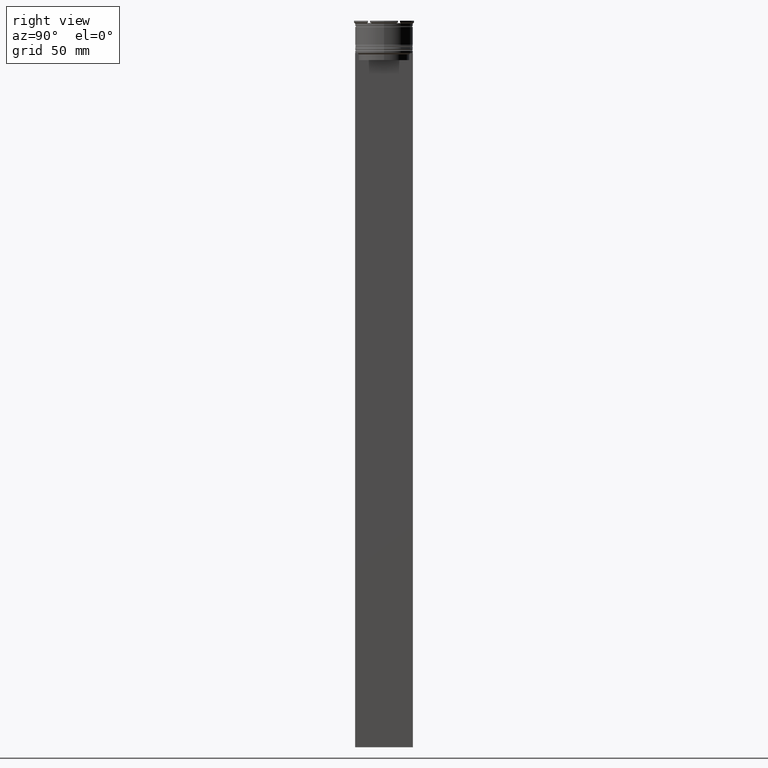
[diagram: clean part render]
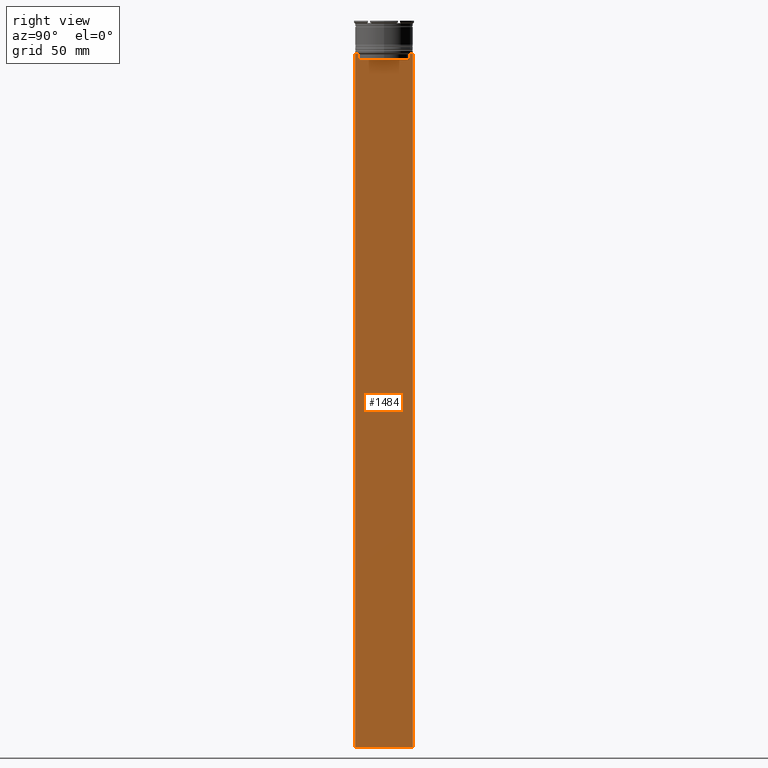
[diagram: same view with one face highlighted and labeled with its STEP entity id]
A machine part, right view. The second image highlights one B-rep face of the part: STEP entity #1484.
In plain terms, the highlighted planar face has unit normal (-1, 0, 0).
Its self-contained STEP definition (entity closure, byte-faithful):
#14 = CARTESIAN_POINT ( 'NONE',  ( 0.5000000000000000000, -12.49999999999999289, -14.00000000000000178 ) ) ;
#28 = VERTEX_POINT ( 'NONE', #39 ) ;
#31 = CARTESIAN_POINT ( 'NONE',  ( 0.5000000000000000000, -12.49999999999999289, -14.00000000000000178 ) ) ;
#34 = EDGE_CURVE ( 'NONE', #1673, #1708, #1573, .T. ) ;
#39 = CARTESIAN_POINT ( 'NONE',  ( 0.5000000000000000000, 11.38902980942626719, -14.00000000000000178 ) ) ;
#114 = DIRECTION ( 'NONE',  ( -1.000000000000000000, 0.000000000000000000, 0.000000000000000000 ) ) ;
#154 = EDGE_CURVE ( 'NONE', #1708, #1888, #2475, .T. ) ;
#165 = DIRECTION ( 'NONE',  ( 0.000000000000000000, -1.000000000000000000, 0.000000000000000000 ) ) ;
#236 = CARTESIAN_POINT ( 'NONE',  ( 0.5000000000000000000, 10.90000000000000213, -17.00000000000000000 ) ) ;
#264 = CARTESIAN_POINT ( 'NONE',  ( 0.5000000000000000000, -10.88852607105296322, -14.50000000000000000 ) ) ;
#267 = CARTESIAN_POINT ( 'NONE',  ( 0.5000000000000000000, -10.88852607105296144, -17.00000000000000000 ) ) ;
#282 = LINE ( 'NONE', #1174, #2625 ) ;
#295 = EDGE_CURVE ( 'NONE', #2275, #1379, #2071, .T. ) ;
#322 = ORIENTED_EDGE ( 'NONE', *, *, #34, .T. ) ;
#351 = ORIENTED_EDGE ( 'NONE', *, *, #295, .T. ) ;
#446 = ORIENTED_EDGE ( 'NONE', *, *, #2088, .T. ) ;
#452 = LINE ( 'NONE', #14, #1881 ) ;
#465 = CARTESIAN_POINT ( 'NONE',  ( 0.5000000000000000000, 12.38991525394746773, -14.00000000000000178 ) ) ;
#491 = ORIENTED_EDGE ( 'NONE', *, *, #1322, .T. ) ;
#494 = CARTESIAN_POINT ( 'NONE',  ( 0.5000000000000000000, 12.50000000000000711, -314.0000000000000000 ) ) ;
#498 = CARTESIAN_POINT ( 'NONE',  ( 0.5000000000000000000, -12.49999999999999289, -314.0000000000000000 ) ) ;
#553 = CARTESIAN_POINT ( 'NONE',  ( 0.5000000000000000000, -12.38991525394746773, -14.00000000000000178 ) ) ;
#602 = CARTESIAN_POINT ( 'NONE',  ( 0.5000000000000000000, 10.88852607105296322, -14.50000000000000000 ) ) ;
#609 = CARTESIAN_POINT ( 'NONE',  ( 0.5000000000000000000, 12.50000000000000711, 11.01999200639360765 ) ) ;
#611 = ORIENTED_EDGE ( 'NONE', *, *, #2370, .T. ) ;
#679 = B_SPLINE_CURVE_WITH_KNOTS ( 'NONE', 3,
 ( #1946, #843, #2083, #602 ),
 .UNSPECIFIED., .F., .F.,
 ( 4, 4 ),
 ( 0.01935560801904634073, 0.02006307108468586772 ),
 .UNSPECIFIED. ) ;
#750 = VERTEX_POINT ( 'NONE', #2837 ) ;
#766 = DIRECTION ( 'NONE',  ( 0.000000000000000000, 0.000000000000000000, -1.000000000000000000 ) ) ;
#843 = CARTESIAN_POINT ( 'NONE',  ( 0.5000000000000000000, 11.22219891375843304, -14.16667035472756808 ) ) ;
#863 = LINE ( 'NONE', #1725, #2388 ) ;
#905 = CARTESIAN_POINT ( 'NONE',  ( 0.5000000000000000000, -11.38902980942626719, -14.00000000000000178 ) ) ;
#915 = VECTOR ( 'NONE', #1783, 1000.000000000000000 ) ;
#973 = ORIENTED_EDGE ( 'NONE', *, *, #154, .T. ) ;
#1027 = VECTOR ( 'NONE', #766, 1000.000000000000000 ) ;
#1053 = ORIENTED_EDGE ( 'NONE', *, *, #2358, .T. ) ;
#1117 = DIRECTION ( 'NONE',  ( 0.000000000000000000, -1.000000000000000000, 0.000000000000000000 ) ) ;
#1151 = CARTESIAN_POINT ( 'NONE',  ( 0.5000000000000000000, -11.05536450423839234, -14.33333718996393102 ) ) ;
#1174 = CARTESIAN_POINT ( 'NONE',  ( 0.5000000000000000000, 10.88852607105296322, 0.000000000000000000 ) ) ;
#1322 = EDGE_CURVE ( 'NONE', #1888, #1658, #1760, .T. ) ;
#1328 = CARTESIAN_POINT ( 'NONE',  ( 0.5000000000000000000, 10.88852607105296144, -17.00000000000000000 ) ) ;
#1336 = EDGE_CURVE ( 'NONE', #1379, #2634, #1420, .T. ) ;
#1365 = CARTESIAN_POINT ( 'NONE',  ( 0.5000000000000000000, -10.88852607105296322, 0.000000000000000000 ) ) ;
#1379 = VERTEX_POINT ( 'NONE', #498 ) ;
#1420 = LINE ( 'NONE', #1849, #2094 ) ;
#1444 = DIRECTION ( 'NONE',  ( 0.000000000000000000, 0.000000000000000000, -1.000000000000000000 ) ) ;
#1474 = ORIENTED_EDGE ( 'NONE', *, *, #2489, .T. ) ;
#1476 = CARTESIAN_POINT ( 'NONE',  ( 0.5000000000000000000, -10.88852607105296322, -14.50000000000000000 ) ) ;
#1484 = ADVANCED_FACE ( 'NONE', ( #1918 ), #2164, .F. ) ;
#1489 = DIRECTION ( 'NONE',  ( 0.000000000000000000, 0.000000000000000000, -1.000000000000000000 ) ) ;
#1573 = LINE ( 'NONE', #236, #915 ) ;
#1641 = CARTESIAN_POINT ( 'NONE',  ( 0.5000000000000000000, -11.38902980942626719, -14.00000000000000178 ) ) ;
#1658 = VERTEX_POINT ( 'NONE', #905 ) ;
#1673 = VERTEX_POINT ( 'NONE', #1328 ) ;
#1685 = DIRECTION ( 'NONE',  ( 0.000000000000000000, 0.000000000000000000, 1.000000000000000000 ) ) ;
#1708 = VERTEX_POINT ( 'NONE', #267 ) ;
#1725 = CARTESIAN_POINT ( 'NONE',  ( 0.5000000000000000000, -12.49999999999999289, -14.00000000000000178 ) ) ;
#1760 = B_SPLINE_CURVE_WITH_KNOTS ( 'NONE', 3,
 ( #264, #1151, #2749, #1641 ),
 .UNSPECIFIED., .F., .F.,
 ( 4, 4 ),
 ( 0.05041323384703226551, 0.05112713601261605068 ),
 .UNSPECIFIED. ) ;
#1783 = DIRECTION ( 'NONE',  ( 0.000000000000000000, -1.000000000000000000, 0.000000000000000000 ) ) ;
#1849 = CARTESIAN_POINT ( 'NONE',  ( 0.5000000000000000000, -12.49999999999999289, -314.0000000000000000 ) ) ;
#1881 = VECTOR ( 'NONE', #2705, 1000.000000000000000 ) ;
#1888 = VERTEX_POINT ( 'NONE', #1476 ) ;
#1918 = FACE_OUTER_BOUND ( 'NONE', #2547, .T. ) ;
#1931 = VERTEX_POINT ( 'NONE', #2349 ) ;
#1946 = CARTESIAN_POINT ( 'NONE',  ( 0.5000000000000000000, 11.38902980942626719, -14.00000000000000178 ) ) ;
#1949 = EDGE_CURVE ( 'NONE', #750, #2634, #2598, .T. ) ;
#1952 = CARTESIAN_POINT ( 'NONE',  ( 0.5000000000000000000, -12.49999999999999289, -14.00000000000000178 ) ) ;
#2015 = VECTOR ( 'NONE', #1117, 1000.000000000000000 ) ;
#2023 = LINE ( 'NONE', #31, #2015 ) ;
#2042 = CARTESIAN_POINT ( 'NONE',  ( 0.5000000000000000000, -12.49999999999999289, 11.01999200639360765 ) ) ;
#2051 = ORIENTED_EDGE ( 'NONE', *, *, #1949, .F. ) ;
#2071 = LINE ( 'NONE', #2042, #1027 ) ;
#2083 = CARTESIAN_POINT ( 'NONE',  ( 0.5000000000000000000, 11.05536450345590538, -14.33333719074559376 ) ) ;
#2088 = EDGE_CURVE ( 'NONE', #2672, #2275, #2158, .T. ) ;
#2094 = VECTOR ( 'NONE', #2258, 1000.000000000000000 ) ;
#2099 = AXIS2_PLACEMENT_3D ( 'NONE', #2120, #114, #1685 ) ;
#2120 = CARTESIAN_POINT ( 'NONE',  ( 0.5000000000000000000, -12.49999999999999289, 11.01999200639360765 ) ) ;
#2158 = LINE ( 'NONE', #1952, #2670 ) ;
#2164 = PLANE ( 'NONE',  #2099 ) ;
#2244 = CARTESIAN_POINT ( 'NONE',  ( 0.5000000000000000000, -12.49999999999999289, -14.00000000000000178 ) ) ;
#2257 = DIRECTION ( 'NONE',  ( -0.000000000000000000, -0.000000000000000000, 1.000000000000000000 ) ) ;
#2258 = DIRECTION ( 'NONE',  ( 0.000000000000000000, 1.000000000000000000, 0.000000000000000000 ) ) ;
#2275 = VERTEX_POINT ( 'NONE', #2244 ) ;
#2280 = VECTOR ( 'NONE', #2257, 1000.000000000000000 ) ;
#2349 = CARTESIAN_POINT ( 'NONE',  ( 0.5000000000000000000, 10.88852607105296322, -14.50000000000000000 ) ) ;
#2354 = DIRECTION ( 'NONE',  ( 0.000000000000000000, -1.000000000000000000, 0.000000000000000000 ) ) ;
#2358 = EDGE_CURVE ( 'NONE', #28, #1931, #679, .T. ) ;
#2370 = EDGE_CURVE ( 'NONE', #750, #2556, #863, .T. ) ;
#2388 = VECTOR ( 'NONE', #2354, 1000.000000000000000 ) ;
#2475 = LINE ( 'NONE', #1365, #2280 ) ;
#2489 = EDGE_CURVE ( 'NONE', #2556, #28, #2023, .T. ) ;
#2541 = EDGE_CURVE ( 'NONE', #1658, #2672, #452, .T. ) ;
#2547 = EDGE_LOOP ( 'NONE', ( #1474, #1053, #2633, #322, #973, #491, #2879, #446, #351, #2601, #2051, #611 ) ) ;
#2556 = VERTEX_POINT ( 'NONE', #465 ) ;
#2566 = VECTOR ( 'NONE', #1489, 1000.000000000000000 ) ;
#2598 = LINE ( 'NONE', #609, #2566 ) ;
#2601 = ORIENTED_EDGE ( 'NONE', *, *, #1336, .T. ) ;
#2625 = VECTOR ( 'NONE', #1444, 1000.000000000000000 ) ;
#2633 = ORIENTED_EDGE ( 'NONE', *, *, #2697, .T. ) ;
#2634 = VERTEX_POINT ( 'NONE', #494 ) ;
#2670 = VECTOR ( 'NONE', #165, 1000.000000000000000 ) ;
#2672 = VERTEX_POINT ( 'NONE', #553 ) ;
#2697 = EDGE_CURVE ( 'NONE', #1931, #1673, #282, .T. ) ;
#2705 = DIRECTION ( 'NONE',  ( 0.000000000000000000, -1.000000000000000000, 0.000000000000000000 ) ) ;
#2749 = CARTESIAN_POINT ( 'NONE',  ( 0.5000000000000000000, -11.22219891450652973, -14.16667035398018903 ) ) ;
#2837 = CARTESIAN_POINT ( 'NONE',  ( 0.5000000000000000000, 12.50000000000000711, -14.00000000000000178 ) ) ;
#2879 = ORIENTED_EDGE ( 'NONE', *, *, #2541, .T. ) ;